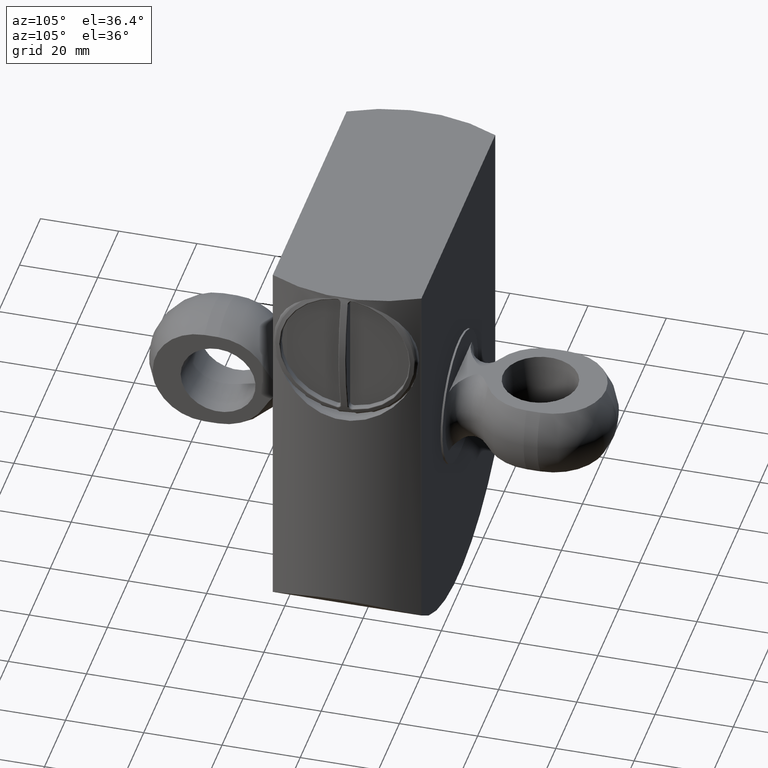
[diagram: clean part render]
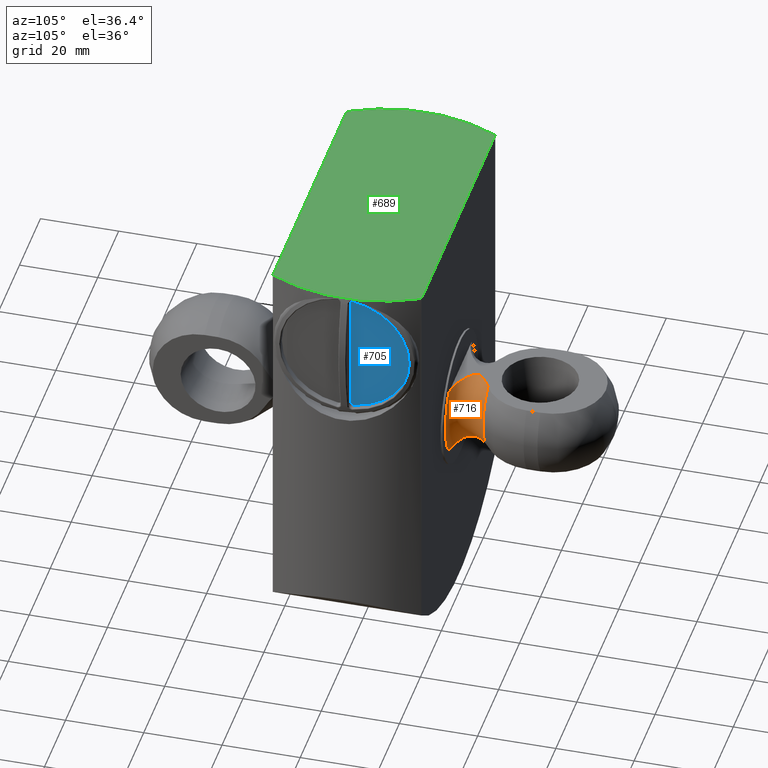
[diagram: same view with three faces highlighted in distinct colors, each labeled with its STEP entity id]
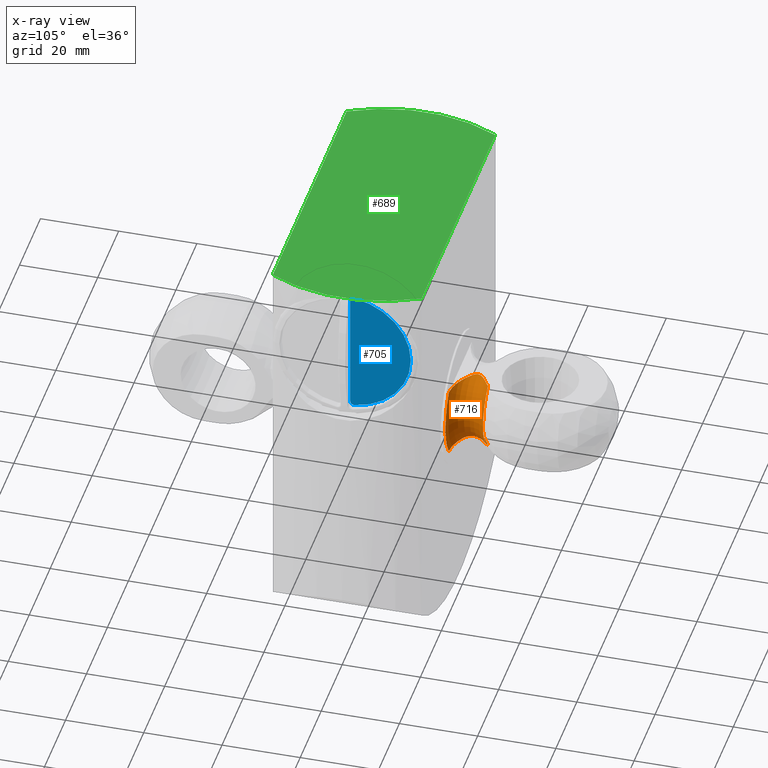
[diagram: x-ray of the same camera — body ghosted, the three highlighted faces saturated]
A machine part, auxiliary view with three faces highlighted in distinct colors.
The next image is the same camera in x-ray (body ghosted, the three faces saturated) — at least one of them is partly hidden behind the body in this view.
Their STEP definitions:

[orange] entity #716 — the highlighted toroidal blend (fillet) surface has major radius 14.1686 mm and minor (blend) radius 5 mm.
#41=TOROIDAL_SURFACE('',#847,14.1686273153048,5.);
#108=FACE_OUTER_BOUND('',#157,.T.);
#157=EDGE_LOOP('',(#631,#632,#633,#634));
#181=B_SPLINE_CURVE_WITH_KNOTS('',3,(#1562,#1563,#1564,#1565,#1566,#1567,
#1568,#1569,#1570,#1571,#1572,#1573,#1574,#1575,#1576,#1577,#1578,#1579,
#1580,#1581,#1582,#1583,#1584,#1585),.UNSPECIFIED.,.F.,.F.,(4,2,2,2,2,2,
2,2,2,2,2,4),(0.818398293786175,0.954110687584532,1.08982308138289,1.25545668887001,
1.42109029635714,1.7126460536763,1.79657064945975,1.84906694787166,1.90156324628357,
1.98548784206703,2.27704359938619,2.39236547652682),.UNSPECIFIED.);
#182=B_SPLINE_CURVE_WITH_KNOTS('',3,(#1590,#1591,#1592,#1593,#1594,#1595,
#1596,#1597,#1598,#1599,#1600,#1601,#1602,#1603,#1604,#1605,#1606,#1607,
#1608,#1609,#1610,#1611,#1612,#1613),.UNSPECIFIED.,.F.,.F.,(4,2,2,2,2,2,
2,2,2,2,2,4),(1.30576841921651,1.42109029635714,1.7126460536763,1.79657064945975,
1.84906694787166,1.90156324628357,1.98548784206703,2.27704359938619,2.44267720687331,
2.60831081436044,2.7440232081588,2.87973560195715),.UNSPECIFIED.);
#283=CIRCLE('',#845,14.1686273153048);
#285=CIRCLE('',#848,10.7951446211846);
#347=VERTEX_POINT('',#1559);
#348=VERTEX_POINT('',#1561);
#349=VERTEX_POINT('',#1588);
#350=VERTEX_POINT('',#1589);
#440=EDGE_CURVE('',#348,#347,#181,.T.);
#442=EDGE_CURVE('',#349,#350,#182,.T.);
#453=EDGE_CURVE('',#350,#348,#283,.T.);
#455=EDGE_CURVE('',#347,#349,#285,.T.);
#631=ORIENTED_EDGE('',*,*,#440,.T.);
#632=ORIENTED_EDGE('',*,*,#455,.T.);
#633=ORIENTED_EDGE('',*,*,#442,.T.);
#634=ORIENTED_EDGE('',*,*,#453,.T.);
#716=ADVANCED_FACE('',(#108),#41,.F.);
#845=AXIS2_PLACEMENT_3D('',#1657,#1058,#1059);
#847=AXIS2_PLACEMENT_3D('',#1659,#1062,#1063);
#848=AXIS2_PLACEMENT_3D('',#1660,#1064,#1065);
#1058=DIRECTION('center_axis',(0.,1.,0.));
#1059=DIRECTION('ref_axis',(-1.,0.,0.));
#1062=DIRECTION('center_axis',(0.,1.,0.));
#1063=DIRECTION('ref_axis',(1.,0.,-1.22464679914735E-16));
#1064=DIRECTION('center_axis',(0.,-1.,0.));
#1065=DIRECTION('ref_axis',(-1.,0.,0.));
#1559=CARTESIAN_POINT('',(5.96113641785618,28.1904761904762,-9.));
#1561=CARTESIAN_POINT('',(10.9430343141197,19.5,-9.));
#1562=CARTESIAN_POINT('Ctrl Pts',(10.9430343141197,19.5,-9.));
#1563=CARTESIAN_POINT('Ctrl Pts',(10.4906596681252,19.5,-9.));
#1564=CARTESIAN_POINT('Ctrl Pts',(9.99586211928906,19.5391017154417,-9.));
#1565=CARTESIAN_POINT('Ctrl Pts',(9.01803420483564,19.6957848898062,-9.));
#1566=CARTESIAN_POINT('Ctrl Pts',(8.53490498251131,19.8127487799375,-9.));
#1567=CARTESIAN_POINT('Ctrl Pts',(7.57340760640737,20.1034655972437,-9.));
#1568=CARTESIAN_POINT('Ctrl Pts',(7.00669901701525,20.3184754379986,-9.));
#1569=CARTESIAN_POINT('Ctrl Pts',(5.90664517587937,20.8231068300911,-9.));
#1570=CARTESIAN_POINT('Ctrl Pts',(5.37291625543525,21.1118915962288,-9.));
#1571=CARTESIAN_POINT('Ctrl Pts',(4.06863606822565,21.9001308625313,-9.));
#1572=CARTESIAN_POINT('Ctrl Pts',(3.11366522277123,22.5695386891567,-9.));
#1573=CARTESIAN_POINT('Ctrl Pts',(2.23944551972547,23.4652202269234,-9.));
#1574=CARTESIAN_POINT('Ctrl Pts',(2.02171325381062,23.7207316059621,-9.));
#1575=CARTESIAN_POINT('Ctrl Pts',(1.81227276924552,24.1243648537024,-9.));
#1576=CARTESIAN_POINT('Ctrl Pts',(1.75035049260237,24.325012338627,-9.));
#1577=CARTESIAN_POINT('Ctrl Pts',(1.75035049260237,24.674987661373,-9.));
#1578=CARTESIAN_POINT('Ctrl Pts',(1.81227276924551,24.8756351462976,-9.));
#1579=CARTESIAN_POINT('Ctrl Pts',(2.02171325381061,25.2792683940379,-9.));
#1580=CARTESIAN_POINT('Ctrl Pts',(2.23944551972545,25.5347797730766,-9.));
#1581=CARTESIAN_POINT('Ctrl Pts',(3.11366522277121,26.4304613108433,-9.));
#1582=CARTESIAN_POINT('Ctrl Pts',(4.06863606822563,27.0998691374687,-9.));
#1583=CARTESIAN_POINT('Ctrl Pts',(5.2293858102269,27.8013660504543,-9.));
#1584=CARTESIAN_POINT('Ctrl Pts',(5.58788768766329,28.0020700672185,-9.));
#1585=CARTESIAN_POINT('Ctrl Pts',(5.96113641785618,28.1904761904762,-9.));
#1588=CARTESIAN_POINT('',(5.96113641785618,28.1904761904762,9.));
#1589=CARTESIAN_POINT('',(10.9430343141197,19.5,9.));
#1590=CARTESIAN_POINT('Ctrl Pts',(5.96113641785618,28.1904761904762,9.));
#1591=CARTESIAN_POINT('Ctrl Pts',(5.5878876876633,28.0020700672185,9.));
#1592=CARTESIAN_POINT('Ctrl Pts',(5.22938581022691,27.8013660504543,9.));
#1593=CARTESIAN_POINT('Ctrl Pts',(4.06863606822565,27.0998691374687,9.));
#1594=CARTESIAN_POINT('Ctrl Pts',(3.11366522277122,26.4304613108433,9.));
#1595=CARTESIAN_POINT('Ctrl Pts',(2.23944551972546,25.5347797730766,9.));
#1596=CARTESIAN_POINT('Ctrl Pts',(2.02171325381062,25.2792683940379,9.));
#1597=CARTESIAN_POINT('Ctrl Pts',(1.81227276924552,24.8756351462976,9.));
#1598=CARTESIAN_POINT('Ctrl Pts',(1.75035049260237,24.674987661373,9.));
#1599=CARTESIAN_POINT('Ctrl Pts',(1.75035049260237,24.325012338627,9.));
#1600=CARTESIAN_POINT('Ctrl Pts',(1.81227276924552,24.1243648537024,9.));
#1601=CARTESIAN_POINT('Ctrl Pts',(2.02171325381061,23.7207316059621,9.));
#1602=CARTESIAN_POINT('Ctrl Pts',(2.23944551972546,23.4652202269234,9.));
#1603=CARTESIAN_POINT('Ctrl Pts',(3.11366522277121,22.5695386891567,9.));
#1604=CARTESIAN_POINT('Ctrl Pts',(4.06863606822564,21.9001308625313,9.));
#1605=CARTESIAN_POINT('Ctrl Pts',(5.37291625543524,21.1118915962288,9.));
#1606=CARTESIAN_POINT('Ctrl Pts',(5.90664517587936,20.8231068300911,9.));
#1607=CARTESIAN_POINT('Ctrl Pts',(7.00669901701525,20.3184754379986,9.));
#1608=CARTESIAN_POINT('Ctrl Pts',(7.57340760640737,20.1034655972437,9.));
#1609=CARTESIAN_POINT('Ctrl Pts',(8.53490498251131,19.8127487799375,9.));
#1610=CARTESIAN_POINT('Ctrl Pts',(9.01803420483564,19.6957848898062,9.));
#1611=CARTESIAN_POINT('Ctrl Pts',(9.99586211928906,19.5391017154417,9.));
#1612=CARTESIAN_POINT('Ctrl Pts',(10.4906596681252,19.5,9.));
#1613=CARTESIAN_POINT('Ctrl Pts',(10.9430343141197,19.5,9.));
#1657=CARTESIAN_POINT('Origin',(0.,19.5,0.));
#1659=CARTESIAN_POINT('Origin',(0.,24.5,0.));
#1660=CARTESIAN_POINT('Origin',(0.,28.1904761904762,0.));

[blue] entity #705 — the highlighted planar face has unit normal (1, -0, 0).
#66=PLANE('',#812);
#97=FACE_OUTER_BOUND('',#143,.T.);
#143=EDGE_LOOP('',(#566,#567,#568,#569));
#197=LINE('',#1486,#222);
#222=VECTOR('',#977,10.);
#259=CIRCLE('',#806,1.);
#260=CIRCLE('',#808,16.5);
#261=CIRCLE('',#811,1.);
#327=VERTEX_POINT('',#1475);
#328=VERTEX_POINT('',#1477);
#329=VERTEX_POINT('',#1481);
#330=VERTEX_POINT('',#1485);
#412=EDGE_CURVE('',#328,#327,#259,.T.);
#415=EDGE_CURVE('',#327,#329,#260,.T.);
#416=EDGE_CURVE('',#328,#330,#197,.T.);
#418=EDGE_CURVE('',#329,#330,#261,.T.);
#566=ORIENTED_EDGE('',*,*,#412,.T.);
#567=ORIENTED_EDGE('',*,*,#415,.T.);
#568=ORIENTED_EDGE('',*,*,#418,.T.);
#569=ORIENTED_EDGE('',*,*,#416,.F.);
#705=ADVANCED_FACE('',(#97),#66,.T.);
#806=AXIS2_PLACEMENT_3D('',#1478,#967,#968);
#808=AXIS2_PLACEMENT_3D('',#1483,#973,#974);
#811=AXIS2_PLACEMENT_3D('',#1489,#981,#982);
#812=AXIS2_PLACEMENT_3D('',#1490,#983,#984);
#967=DIRECTION('center_axis',(0.,1.,0.));
#968=DIRECTION('ref_axis',(1.,0.,0.));
#973=DIRECTION('center_axis',(0.,1.,0.));
#974=DIRECTION('ref_axis',(-0.129032258064516,0.,-0.991640396705767));
#977=DIRECTION('',(-1.80577788453472E-17,0.,1.));
#981=DIRECTION('center_axis',(0.,1.,0.));
#982=DIRECTION('ref_axis',(-0.129032258064522,0.,0.991640396705767));
#983=DIRECTION('center_axis',(0.,1.,0.));
#984=DIRECTION('ref_axis',(1.,0.,0.));
#1475=CARTESIAN_POINT('',(-2.12903225806452,11.,-16.3620665456452));
#1477=CARTESIAN_POINT('',(-1.,11.,-15.3704261489394));
#1478=CARTESIAN_POINT('Origin',(-2.,11.,-15.3704261489394));
#1481=CARTESIAN_POINT('',(-2.12903225806452,11.,16.3620665456452));
#1483=CARTESIAN_POINT('Origin',(0.,11.,0.));
#1485=CARTESIAN_POINT('',(-1.,11.,15.3704261489394));
#1486=CARTESIAN_POINT('',(-1.,11.,-15.3704261489394));
#1489=CARTESIAN_POINT('Origin',(-2.,11.,15.3704261489394));
#1490=CARTESIAN_POINT('Origin',(-8.75,11.,-2.22044604925031E-15));

[green] entity #689 — the highlighted planar face has unit normal (0, 0, 1).
#64=PLANE('',#776);
#81=FACE_OUTER_BOUND('',#125,.T.);
#125=EDGE_LOOP('',(#496,#497,#498,#499));
#189=LINE('',#1233,#214);
#190=LINE('',#1238,#215);
#214=VECTOR('',#893,10.);
#215=VECTOR('',#902,10.);
#235=CIRCLE('',#768,40.);
#236=CIRCLE('',#770,40.);
#299=VERTEX_POINT('',#1202);
#300=VERTEX_POINT('',#1204);
#301=VERTEX_POINT('',#1208);
#302=VERTEX_POINT('',#1209);
#369=EDGE_CURVE('',#300,#299,#235,.T.);
#371=EDGE_CURVE('',#301,#302,#236,.T.);
#376=EDGE_CURVE('',#301,#299,#189,.T.);
#379=EDGE_CURVE('',#300,#302,#190,.T.);
#496=ORIENTED_EDGE('',*,*,#371,.T.);
#497=ORIENTED_EDGE('',*,*,#379,.F.);
#498=ORIENTED_EDGE('',*,*,#369,.T.);
#499=ORIENTED_EDGE('',*,*,#376,.F.);
#689=ADVANCED_FACE('',(#81),#64,.T.);
#768=AXIS2_PLACEMENT_3D('',#1205,#882,#883);
#770=AXIS2_PLACEMENT_3D('',#1210,#887,#888);
#776=AXIS2_PLACEMENT_3D('',#1239,#903,#904);
#882=DIRECTION('center_axis',(0.,0.,1.));
#883=DIRECTION('ref_axis',(1.,0.,0.));
#887=DIRECTION('center_axis',(0.,0.,1.));
#888=DIRECTION('ref_axis',(1.,0.,0.));
#893=DIRECTION('',(1.,0.,0.));
#902=DIRECTION('',(-1.,0.,0.));
#903=DIRECTION('center_axis',(0.,0.,1.));
#904=DIRECTION('ref_axis',(1.,0.,0.));
#1202=CARTESIAN_POINT('',(35.1994318135961,19.,55.));
#1204=CARTESIAN_POINT('',(35.1994318135961,-19.,55.));
#1205=CARTESIAN_POINT('Origin',(0.,0.,55.));
#1208=CARTESIAN_POINT('',(-35.1994318135961,19.,55.));
#1209=CARTESIAN_POINT('',(-35.1994318135961,-19.,55.));
#1210=CARTESIAN_POINT('Origin',(0.,0.,55.));
#1233=CARTESIAN_POINT('',(40.,19.,55.));
#1238=CARTESIAN_POINT('',(40.,-19.,55.));
#1239=CARTESIAN_POINT('Origin',(-40.,0.,55.));